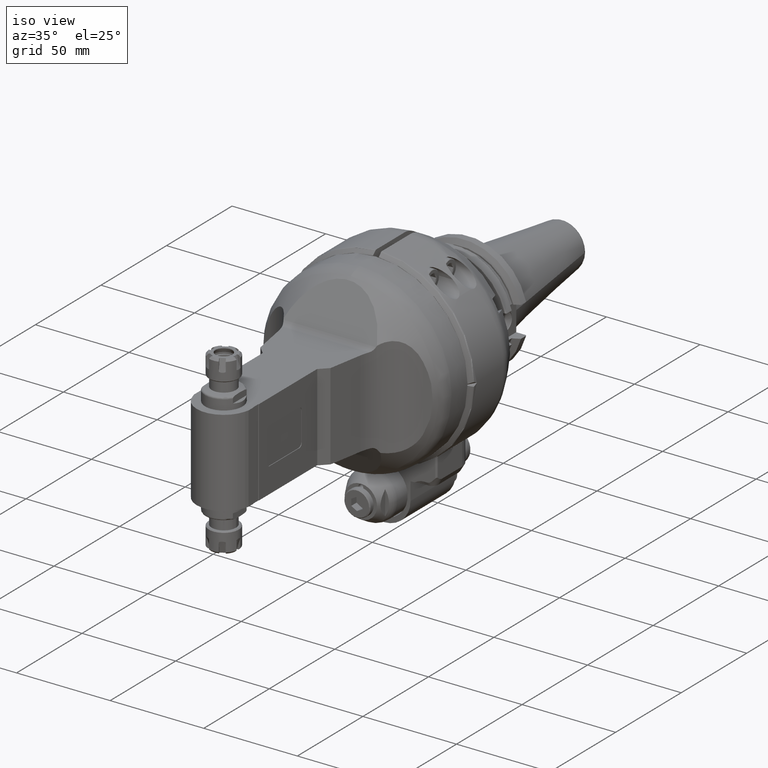
[diagram: clean part render]
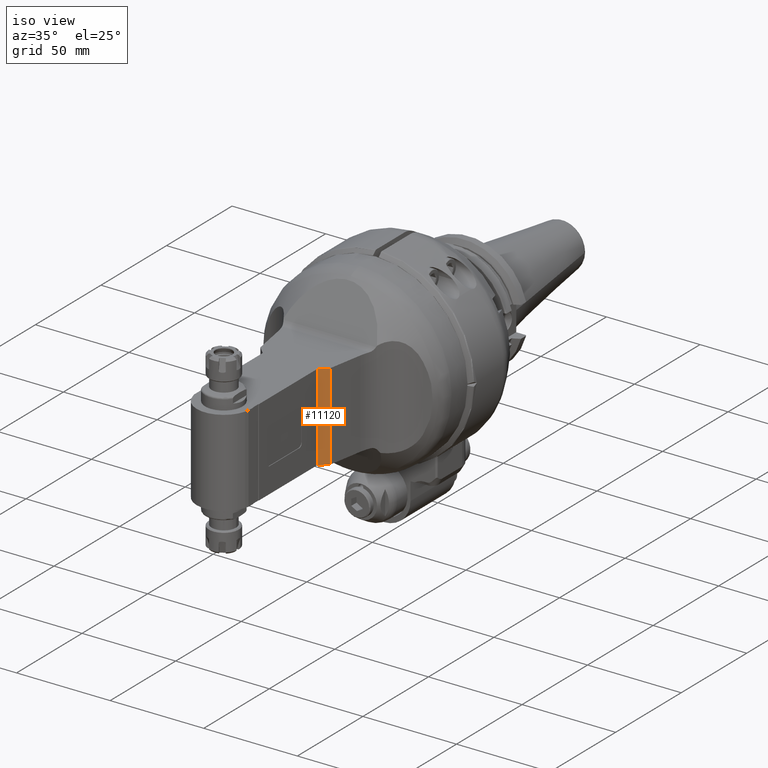
[diagram: same view with one face highlighted and labeled with its STEP entity id]
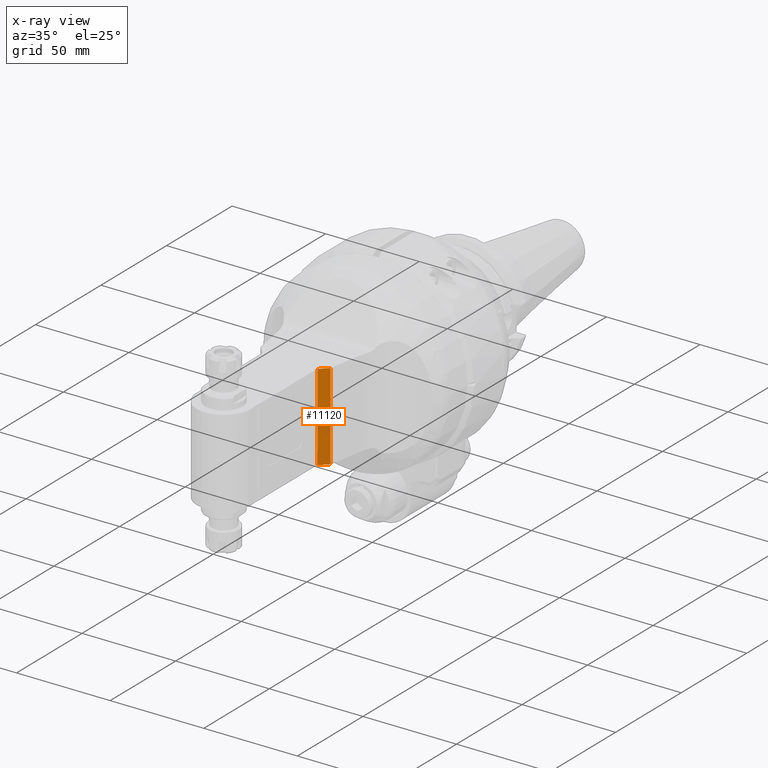
[diagram: x-ray of the same camera — body ghosted, the highlighted face saturated]
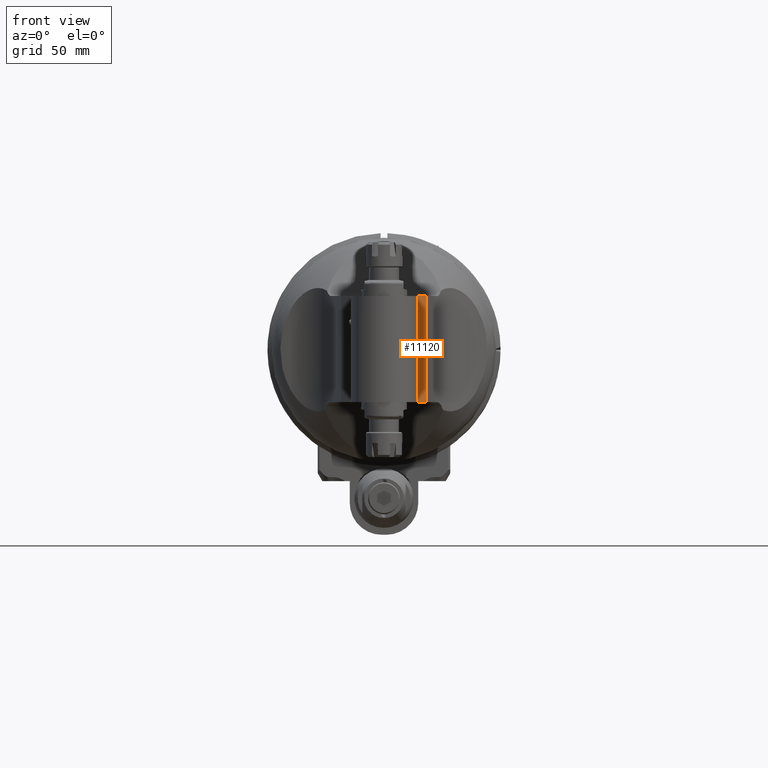
[diagram: same view with one face highlighted and labeled with its STEP entity id]
A machine part, iso view. The second image highlights one B-rep face of the part: STEP entity #11120.
The next image is the same camera in x-ray: the body ghosted, the highlighted face saturated — about 0% of this face is hidden behind the body in this view.
A second angle (front view) of the same face is appended — the face is thin or edge-on in the first view.
In plain terms, the highlighted planar face has unit normal (-0.7071, 0.7071, 0).
Its self-contained STEP definition (entity closure, byte-faithful):
#935=LINE('',#21648,#1707);
#959=LINE('',#21710,#1731);
#961=LINE('',#21715,#1733);
#962=LINE('',#21717,#1734);
#1707=VECTOR('',#15057,5.83766373239261);
#1731=VECTOR('',#15099,5.83766373239261);
#1733=VECTOR('',#15105,46.5);
#1734=VECTOR('',#15108,46.5);
#2472=PLANE('',#12307);
#3015=FACE_OUTER_BOUND('',#3756,.T.);
#3756=EDGE_LOOP('',(#9635,#9636,#9637,#9638));
#5383=VERTEX_POINT('',#21645);
#5384=VERTEX_POINT('',#21647);
#5412=VERTEX_POINT('',#21707);
#5413=VERTEX_POINT('',#21709);
#6850=EDGE_CURVE('',#5383,#5384,#935,.T.);
#6881=EDGE_CURVE('',#5412,#5413,#959,.T.);
#6884=EDGE_CURVE('',#5413,#5383,#961,.T.);
#6885=EDGE_CURVE('',#5412,#5384,#962,.T.);
#9635=ORIENTED_EDGE('',*,*,#6884,.F.);
#9636=ORIENTED_EDGE('',*,*,#6881,.F.);
#9637=ORIENTED_EDGE('',*,*,#6885,.T.);
#9638=ORIENTED_EDGE('',*,*,#6850,.F.);
#11120=ADVANCED_FACE('',(#3015),#2472,.F.);
#12307=AXIS2_PLACEMENT_3D('',#21716,#15106,#15107);
#15057=DIRECTION('',(0.707106781186548,0.707106781186548,0.));
#15099=DIRECTION('',(-0.707106781186548,-0.707106781186548,0.));
#15105=DIRECTION('',(0.,0.,1.));
#15106=DIRECTION('center_axis',(-0.707106781186548,0.707106781186548,0.));
#15107=DIRECTION('ref_axis',(0.707106781186548,0.707106781186548,0.));
#15108=DIRECTION('',(0.,0.,1.));
#21645=CARTESIAN_POINT('',(14.61542661189,50.5,23.5));
#21647=CARTESIAN_POINT('',(18.74327822335,54.62785161146,23.5));
#21648=CARTESIAN_POINT('',(14.61542661189,50.5,23.5));
#21707=CARTESIAN_POINT('',(18.74327822335,54.62785161146,-23.));
#21709=CARTESIAN_POINT('',(14.61542661189,50.5,-23.));
#21710=CARTESIAN_POINT('',(18.74327822335,54.62785161146,-23.));
#21715=CARTESIAN_POINT('',(14.61542661189,50.5,-23.));
#21716=CARTESIAN_POINT('Origin',(16.67935241762,52.56392580573,0.25));
#21717=CARTESIAN_POINT('',(18.74327822335,54.62785161146,-23.));